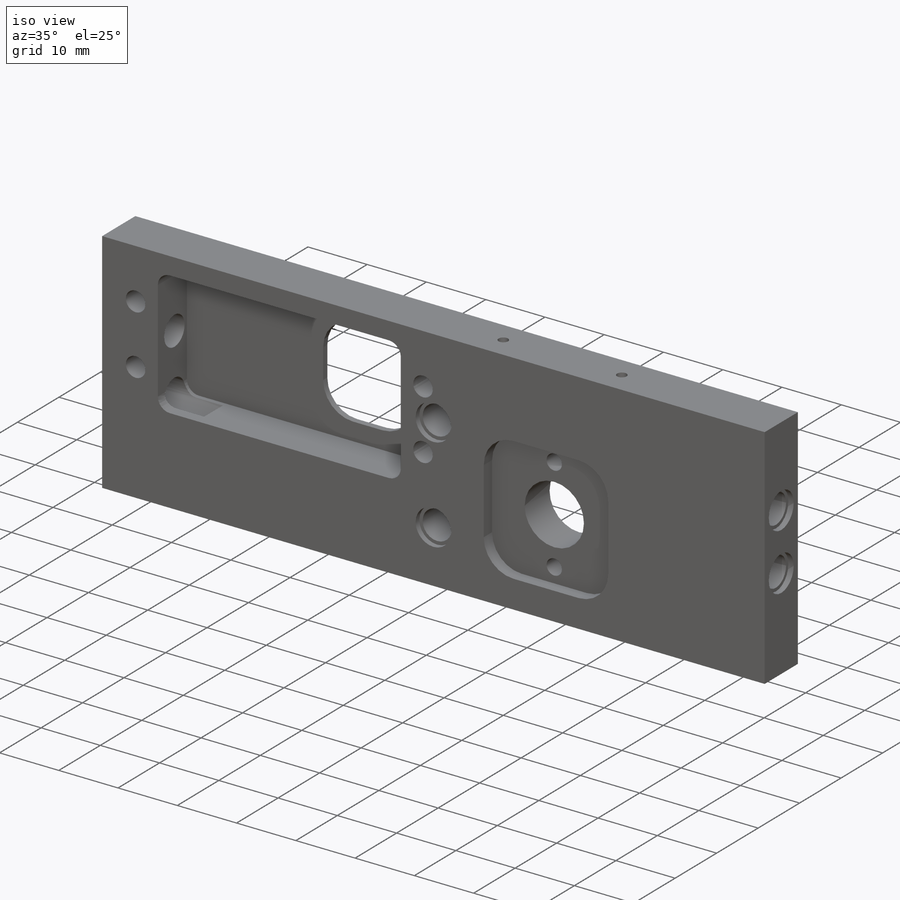
[diagram: iso view]
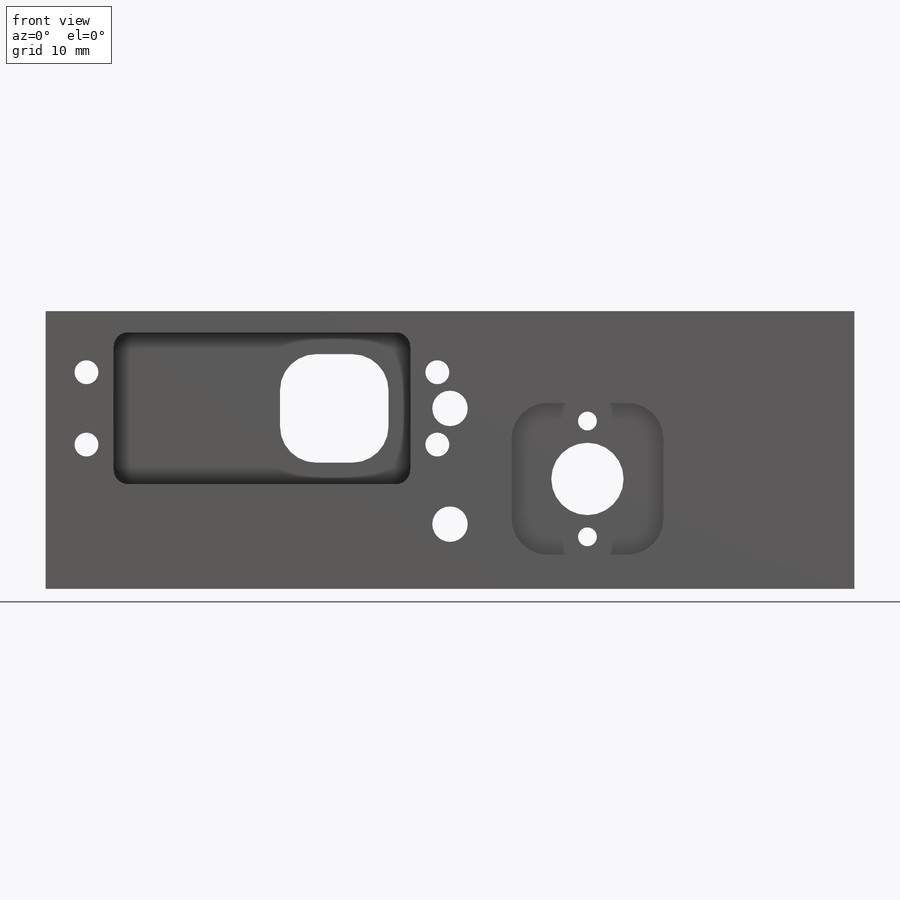
[diagram: front view]
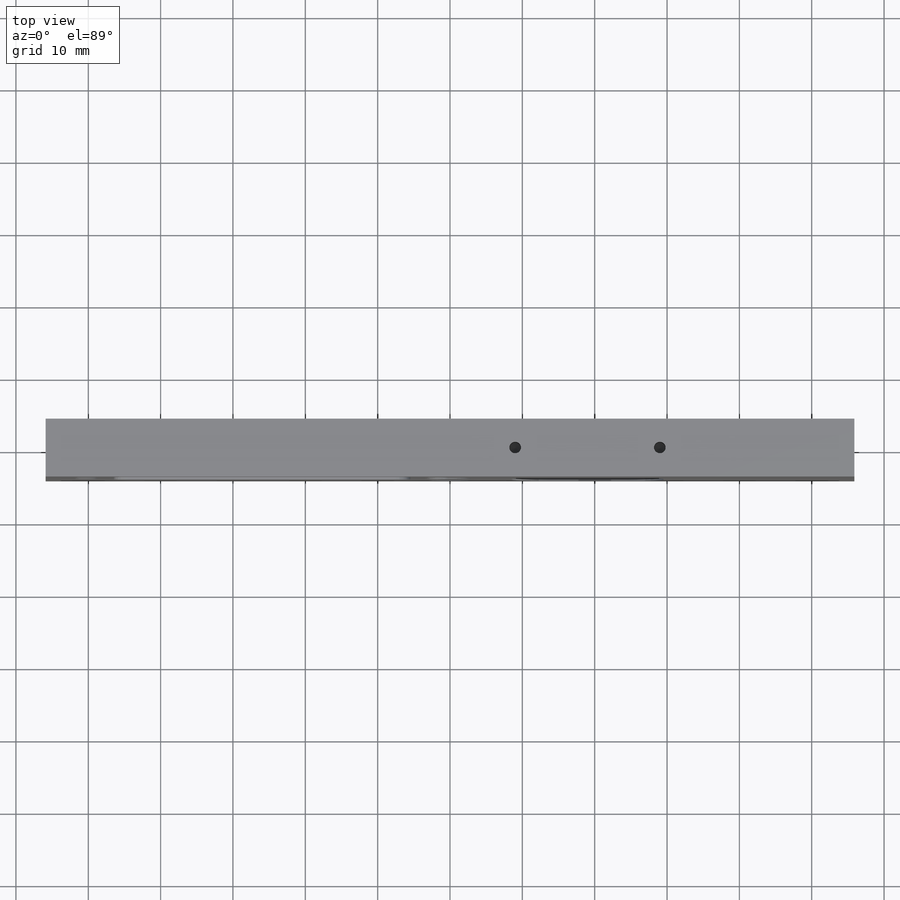
[diagram: top view]
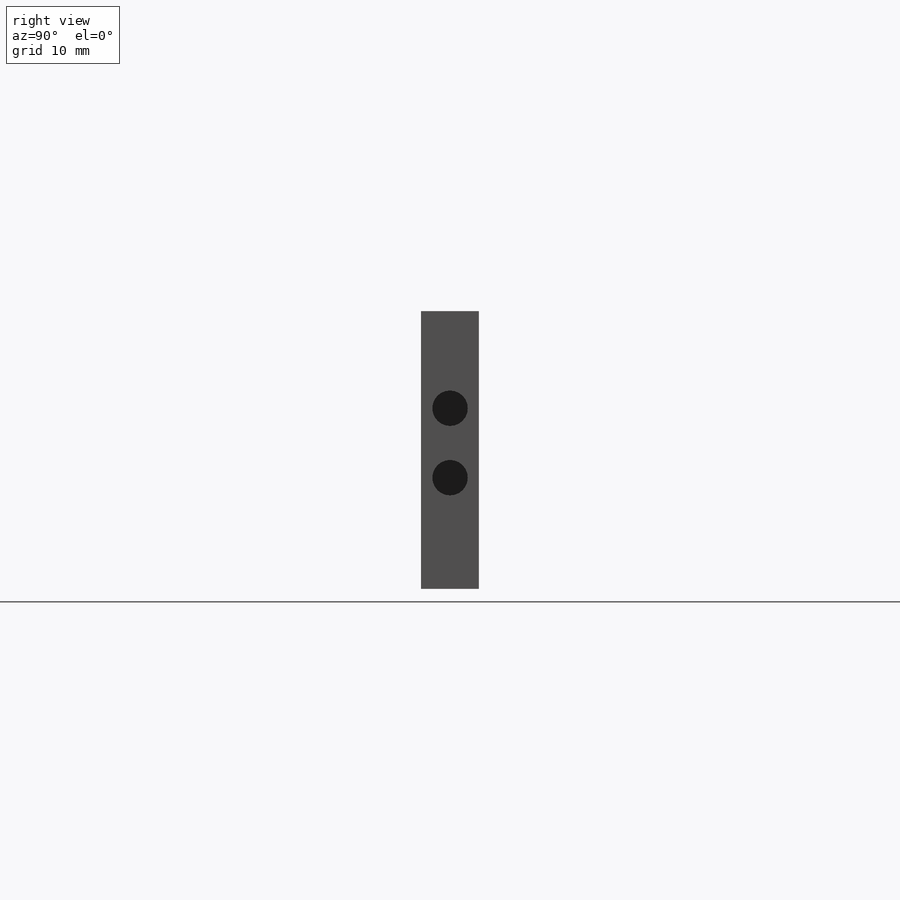
[diagram: right view]
SOLIDWORKS PART (.sldprt)
format: sldprt  version: not decoded by parser v0  size: 550,400 bytes
history: native  units: mm
features: sketch x16, cut_extrude x10, thread x6, plane x4, fillet x2, hole x2, material x1, extrude x1, pattern_linear x1, mirror x1 + 2 further entries (+10 scaffold rows collapsed; 1 parser-record rows omitted)
feature tree (57):
  scaffold x10  (default folders/planes/origin — collapsed)
  material  "3.1325 (EN-AW 2017A)"
  plane  "Ebene vorne"
  plane  "Ebene oben"
  plane  "Ebene rechts"
  sketch  "Skizze1"  dims[D1=111.8mm D2=38.4mm]
  extrude  "Aufsatz-Linear austragen1"  Depth=8mm
  sketch  "Skizze2"  dims[D1=4.8mm D2=3.9mm]
  cut_extrude  "Schnitt-Linear austragen1"  Depth=2mm
  pattern_linear  "Lineares Muster1"  Count1=20 Count2=1 Spacing1=8mm Spacing2=0.1mm
  parser-record x1  (decoder bookkeeping rows leaked as tree rows — omitted from the tree; the rows remain in map.json)
  sketch  "Skizze3"  dims[c1.D2=4.9mm c1.D3=6.0mm c1.D4=6.0mm c2.D2=6.0mm c2.D3=4.9mm c2.D1=16.0mm c2.D4=3.85mm c2.D5=16.0mm c3.D4=8.95mm]
  cut_extrude  "Schnitt-Linear austragen2"  [1 undecoded]
  sketch  "Skizze4"  dims[c1.D1=24.0mm c1.D2=16.0mm c1.D3=23.0mm c1.D5=23.0mm c1.D6=10.0mm c1.D7=20.1mm c1.D8=~13.160754mm c1.D9=2.6mm c1.D10=5.0mm c2.D3=~36.901645mm c2.D4=15.2mm c2.D8=16.0mm c2.D7=21.0mm c2.D11=16.0mm c3.D7=21.0mm]
  cut_extrude  "Schnitt-Linear austragen3"  [1 undecoded]
  sketch  "Skizze3<3>"  dims[D1=0.9mm]
  mirror  "Spiegeln1"
  cut_extrude  "Schnitt-Linear austragen5"  [1 undecoded]
  sketch  "Skizze4<2>"
  cut_extrude  "Schnitt-Linear austragen4"  Depth=2mm
  sketch  "Skizze5"  dims[D1=16.0mm D2=16.0mm D6=5.0mm D8=9.0mm D3=41.0mm D4=21.0mm D5=10.5mm D7=15.0mm D9=10.0mm D10=48.5mm D11=16.0mm]
  cut_extrude  "Schnitt-Linear austragen6"  [1 undecoded]
  cut_extrude  "Schnitt-Linear austragen7"  [1 undecoded]
  sketch  "Skizze5<3>"  dims[D1=7.0mm]
  sketch  "Lochpositionen"  dims[D1=16.0mm]
  "Loch-Muster"
  fillet  "Fräser 10"  Radius=5mm
  fillet  "Fräser 4"  Radius=2mm
  hole  "M4 Gewindebohrung1"  Diameter=3.3mm Depth=8mm
  sketch  "Skizze8"
  sketch  "Skizze9"  dims[hole-wizard template sketch: 59 standard entries collapsed; hole parameters kept: c18.Bohrerdurchmesser=3.3mm c18.Bohrungstiefe=8.0mm]
  thread  "Bohrungsgewinde1"  Diameter=4mm  [1 undecoded]
  thread  "Bohrungsgewinde2"  Diameter=4mm  [1 undecoded]
  thread  "Bohrungsgewinde3"  Diameter=4mm  [1 undecoded]
  thread  "Bohrungsgewinde4"  Diameter=4mm  [1 undecoded]
  cut_extrude  "Schnitt-Linear austragen8"  [1 undecoded]
  sketch  "Skizze5<4>"  dims[D1=8.5mm]
  sketch  "Skizze10"  dims[c1.D1=4.9mm c1.D2=6.0mm c1.D3=15.35mm c1.D4=9.6mm c1.D5=24.95mm c2.D3=5.75mm c2.D6=15.35mm c2.D7=34.55mm]
  cut_extrude  "Schnitt-Linear austragen9"  Depth=16mm
  cut_extrude  "Schnitt-Linear austragen10"  [1 undecoded]
  sketch  "Skizze10<3>"  dims[D1=0.9mm]
  "Spiegeln2"
  plane  "Ebene1"
  hole  "M2 Gewindebohrung1"  Diameter=1.6mm Depth=6mm
  sketch  "Skizze12"  dims[D1=20.0mm]
  sketch  "Skizze11"  dims[hole-wizard template sketch: 50 standard entries collapsed; hole parameters above]
  thread  "Bohrungsgewinde5"  Diameter=4mm  [1 undecoded]
  thread  "Bohrungsgewinde6"  Diameter=4mm  [1 undecoded]
decode coverage: 29 of 39 modeling features carry decoded parameters; 2 rows unclassified (native names shown)
note: ~ marks probable driven/reference dimensions
note: 13 parameter values undecoded
summary: no parameter record found for 7 features
note: suppression state not decoded; provenance and decode notes live in map.json
